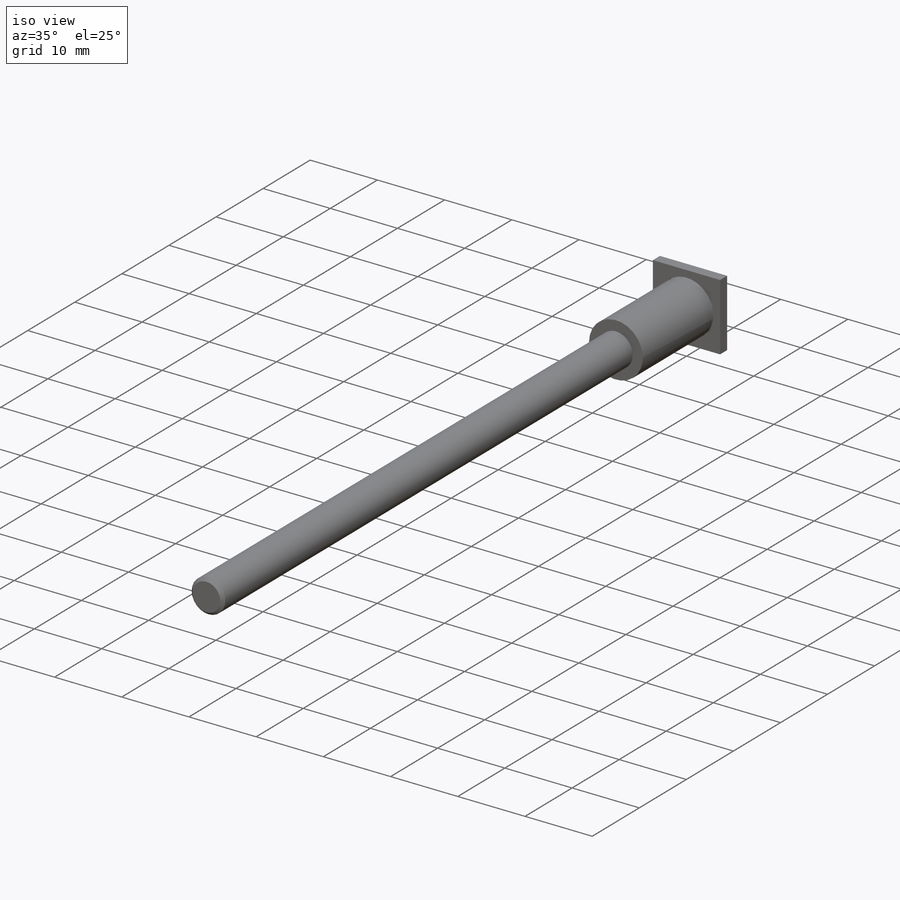
[diagram: iso view]
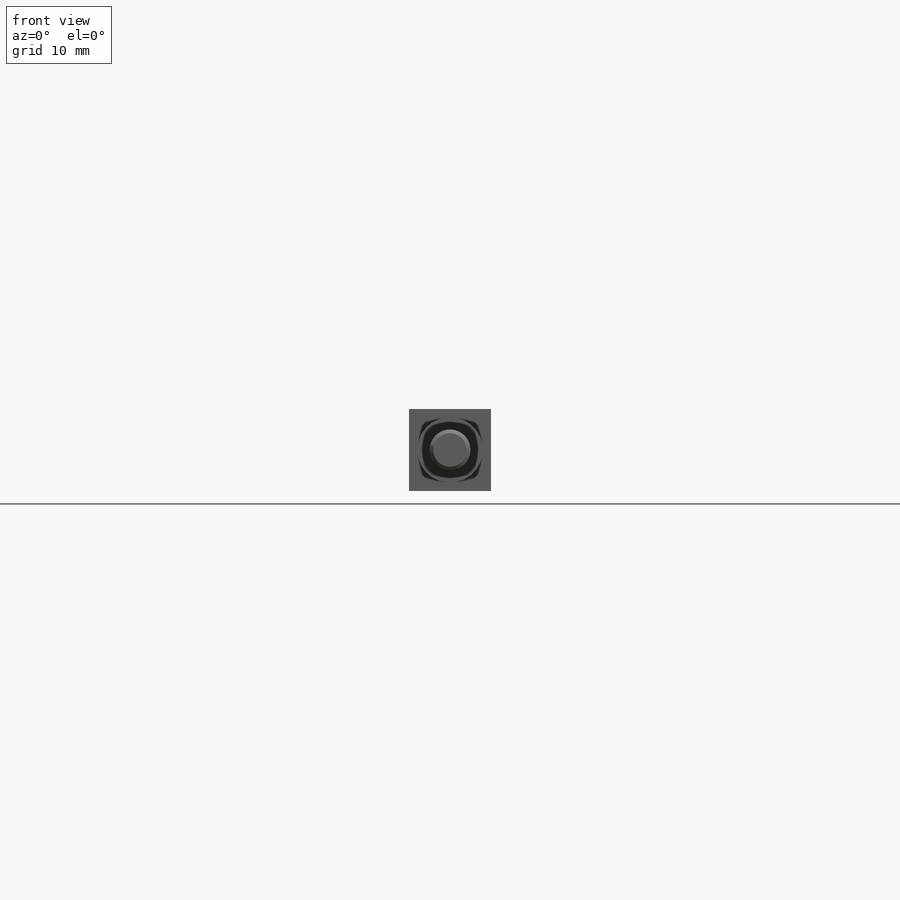
[diagram: front view]
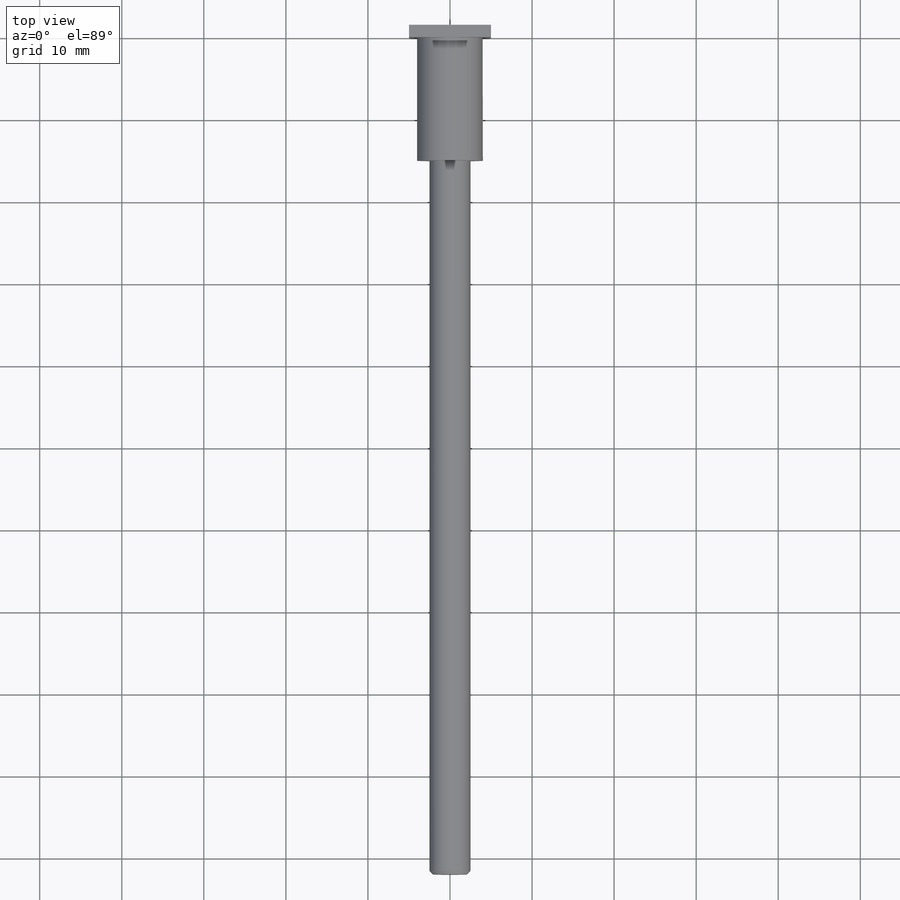
[diagram: top view]
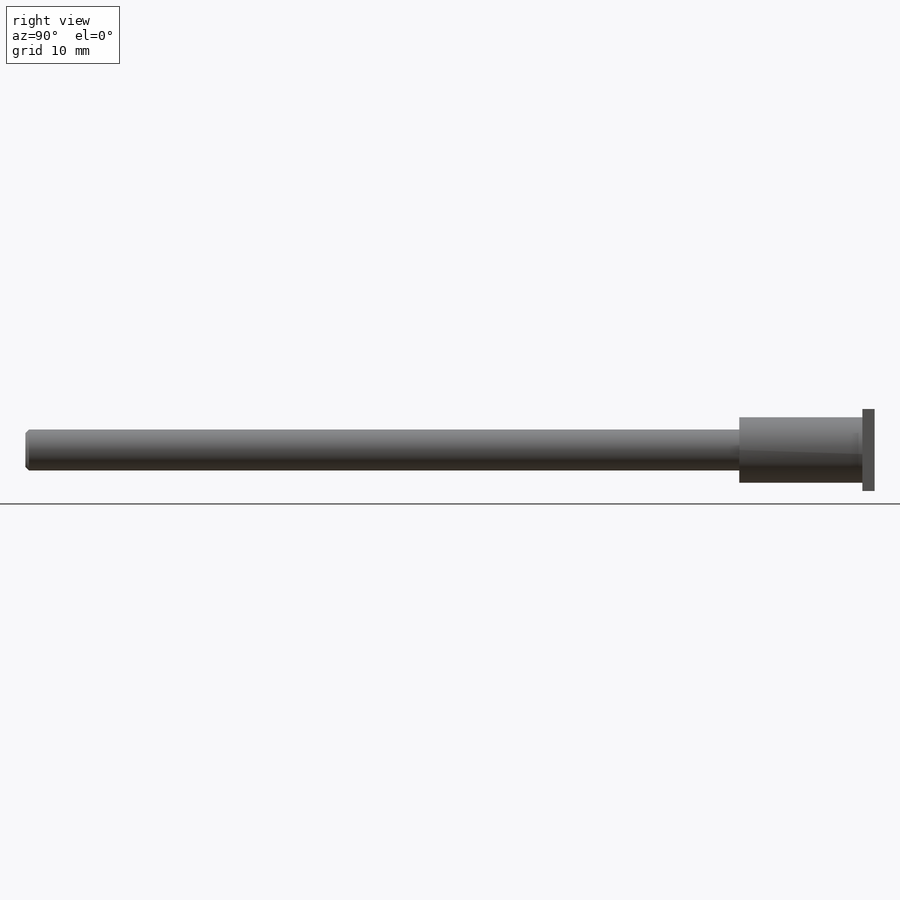
[diagram: right view]
SOLIDWORKS PART (.sldprt)
format: sldprt  version: not decoded by parser v0  size: 273,920 bytes
history: native  units: mm
features: sketch x5, plane x3, cut_extrude x3, extrude x2, thread x2, chamfer x2, material x1 (+9 scaffold rows collapsed)
feature tree (27):
  scaffold x9  (default folders/planes/origin — collapsed)
  material  "Сталь"
  plane  "Спереди"
  plane  "Сверху"
  plane  "Справа"
  sketch  "Эскиз1"  dims[D1=8.0mm]
  extrude  "Бобышка-Вытянуть1"  Depth=102mm
  sketch  "Эскиз2"  dims[D1=10.0mm]
  extrude  "Бобышка-Вытянуть2"  Depth=1.5mm
  sketch  "Эскиз6"  dims[D1=4.11mm]
  cut_extrude  "Вырез-Вытянуть1"  [1 undecoded]
  thread  "Условное изображение резьбы1"  Diameter=13mm  [1 undecoded]
  sketch  "Эскиз7"  dims[D1=0.0mm]
  cut_extrude  "Вырез-Вытянуть2"  Depth=1.2mm
  chamfer  "Фаска1"  Distance=0.445mm Angle=45deg
  sketch  "Эскиз9"  dims[D1=5.0mm D2=20.0mm]
  cut_extrude  "Вырез-Вытянуть3"  [1 undecoded]
  thread  "Cosmetic Thread1"  Diameter=20mm  [1 undecoded]
  chamfer  "Chamfer1"  Distance=0.445mm Angle=45deg
decode coverage: 12 of 14 modeling features carry decoded parameters
note: 4 parameter values undecoded
note: suppression state not decoded; provenance and decode notes live in map.json
